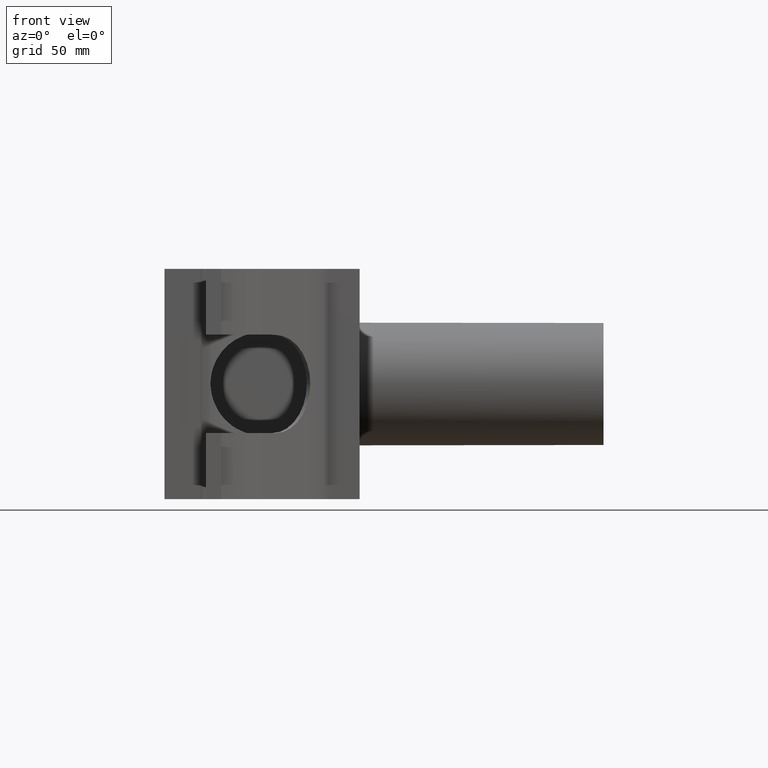
[diagram: clean part render]
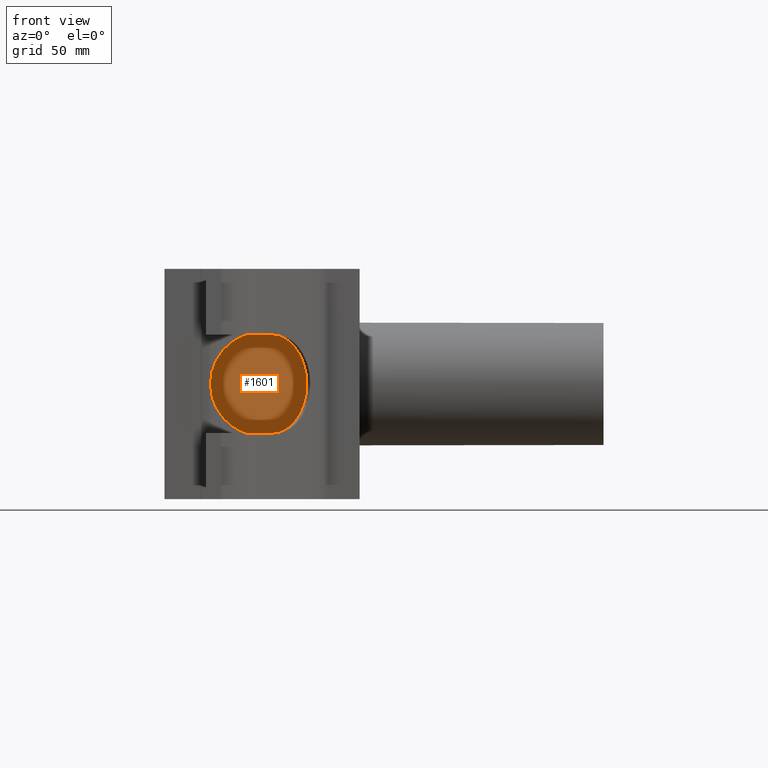
[diagram: same view with one face highlighted and labeled with its STEP entity id]
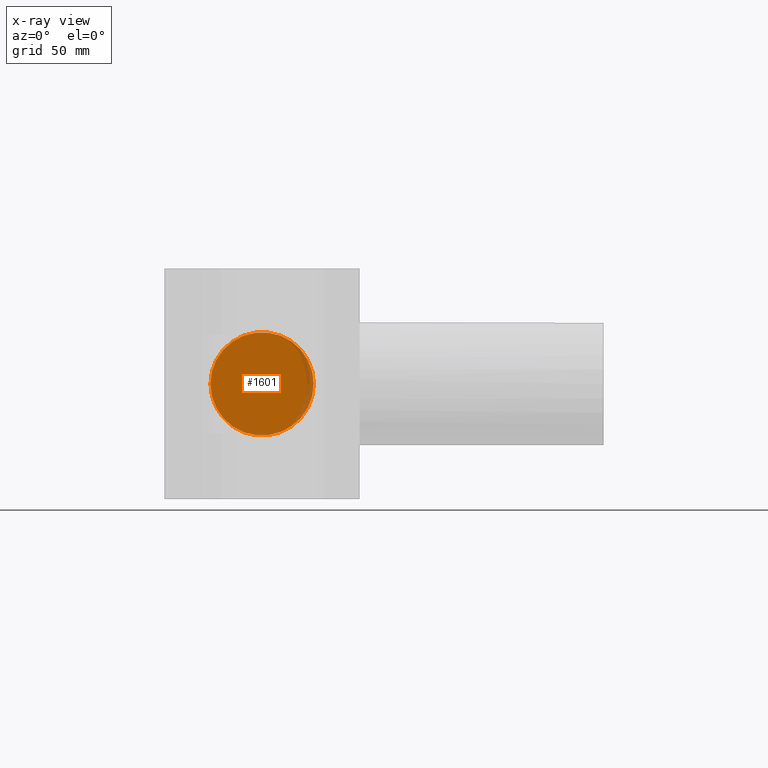
[diagram: x-ray of the same camera — body ghosted, the highlighted face saturated]
A machine part, front view. The second image highlights one B-rep face of the part: STEP entity #1601.
The next image is the same camera in x-ray: the body ghosted, the highlighted face saturated — about 7% of this face is hidden behind the body in this view.
In plain terms, the highlighted planar face has unit normal (0, -1, -0).
Its self-contained STEP definition (entity closure, byte-faithful):
#387=FACE_OUTER_BOUND('',#493,.T.);
#493=EDGE_LOOP('',(#1088));
#631=CIRCLE('',#1711,26.46);
#706=VERTEX_POINT('',#2393);
#861=EDGE_CURVE('',#706,#706,#631,.T.);
#1088=ORIENTED_EDGE('',*,*,#861,.F.);
#1542=PLANE('',#1710);
#1601=ADVANCED_FACE('',(#387),#1542,.T.);
#1710=AXIS2_PLACEMENT_3D('',#2392,#1892,#1893);
#1711=AXIS2_PLACEMENT_3D('',#2394,#1894,#1895);
#1892=DIRECTION('center_axis',(0.,-1.,-3.06161699786838E-16));
#1893=DIRECTION('ref_axis',(0.,0.,-1.));
#1894=DIRECTION('center_axis',(0.,1.,3.06161699786838E-16));
#1895=DIRECTION('ref_axis',(1.,0.,0.));
#2392=CARTESIAN_POINT('Origin',(0.,164.25,26.46));
#2393=CARTESIAN_POINT('',(-26.46,164.25,4.38833810772467E-14));
#2394=CARTESIAN_POINT('Origin',(0.,164.25,4.06429656467028E-14));